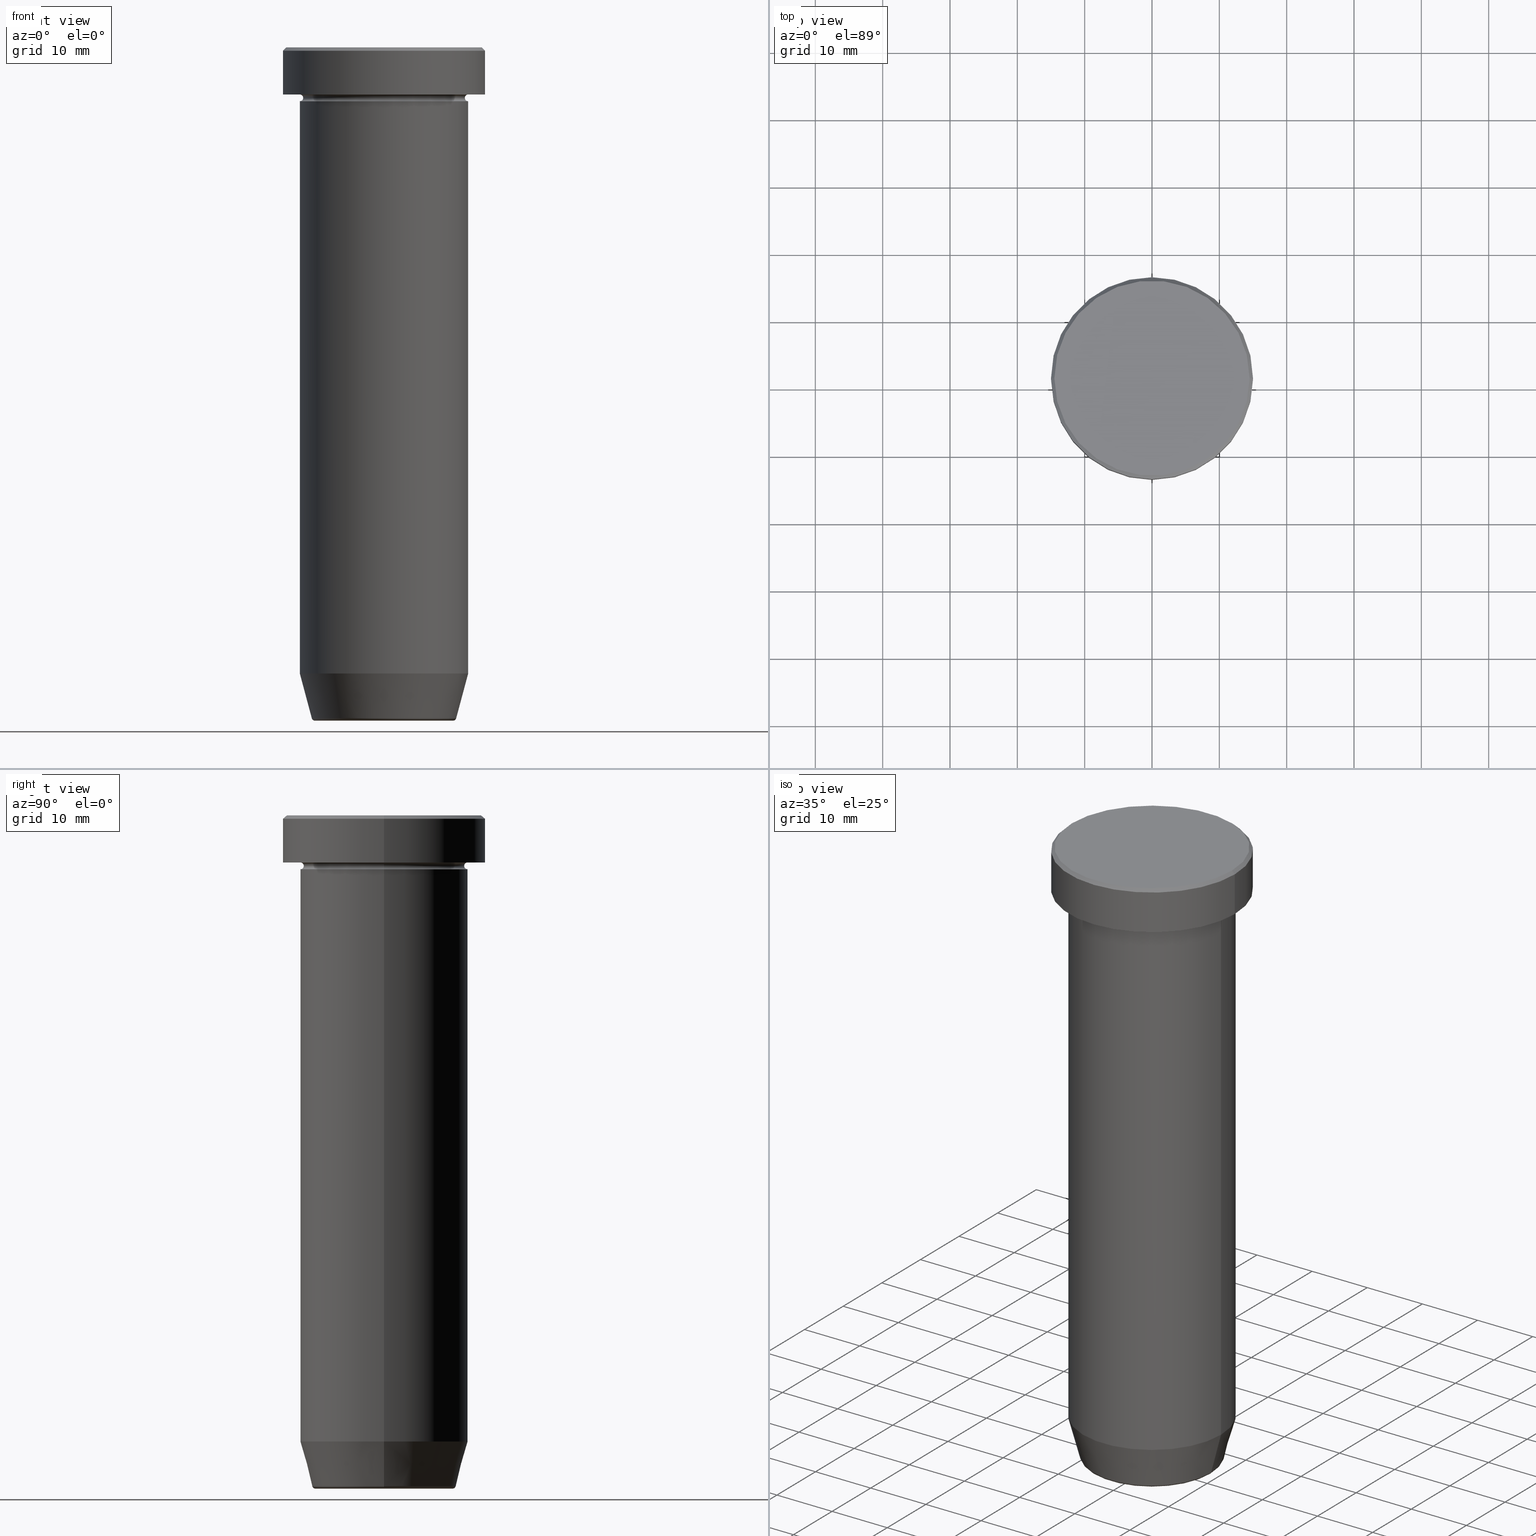
[diagram: canonical four-view strip — front | top / right | iso, engineering-drawing reading convention]
A machine part, canonical four-view strip (front | top / right | iso — engineering-drawing reading convention). The complete STEP part file that produces these views, byte-faithful:
ISO-10303-21;
HEADER;
FILE_DESCRIPTION (( 'STEP AP203' ),
    '1' );
FILE_NAME ('887b.STEP',
    '2024-01-02T20:45:46',
    ( '' ),
    ( '' ),
    'SwSTEP 2.0',
    'SolidWorks 2019',
    '' );
FILE_SCHEMA (( 'CONFIG_CONTROL_DESIGN' ));
ENDSEC;

DATA;
#1 = EDGE_CURVE ( 'NONE', #512, #400, #425, .T. ) ;
#2 = FACE_OUTER_BOUND ( 'NONE', #296, .T. ) ;
#3 = CARTESIAN_POINT ( 'NONE',  ( -12.50000000000000000, 1.530808498934191521E-15, -93.00000000000000000 ) ) ;
#4 = VERTEX_POINT ( 'NONE', #394 ) ;
#5 = VECTOR ( 'NONE', #48, 1000.000000000000000 ) ;
#6 = APPROVAL_PERSON_ORGANIZATION ( #469, #16, #190 ) ;
#7 = CARTESIAN_POINT ( 'NONE',  ( -12.50000000000000000, 1.530808498934191521E-15, 0.000000000000000000 ) ) ;
#8 = APPROVAL ( #523, 'NEUR�EN�' ) ;
#9 = DIRECTION ( 'NONE',  ( 0.7071067811865463515, 8.659560562354918067E-17, -0.7071067811865487940 ) ) ;
#10 = EDGE_LOOP ( 'NONE', ( #82, #565, #197, #529 ) ) ;
#11 = DIRECTION ( 'NONE',  ( -1.000000000000000000, 0.000000000000000000, 0.000000000000000000 ) ) ;
#12 = ORIENTED_EDGE ( 'NONE', *, *, #533, .T. ) ;
#13 = DIRECTION ( 'NONE',  ( 1.000000000000000000, 0.000000000000000000, 0.000000000000000000 ) ) ;
#14 = DESIGN_CONTEXT ( 'detailed design', #463, 'design' ) ;
#15 = VERTEX_POINT ( 'NONE', #519 ) ;
#16 = APPROVAL ( #46, 'NEUR�EN�' ) ;
#17 = DIRECTION ( 'NONE',  ( -0.000000000000000000, -0.000000000000000000, 1.000000000000000000 ) ) ;
#18 = TOROIDAL_SURFACE ( 'NONE', #464, 12.50000000000000000, 0.5000000000000000000 ) ;
#19 = TOROIDAL_SURFACE ( 'NONE', #365, 10.24069215899266005, 0.5000000000000000000 ) ;
#20 = VERTEX_POINT ( 'NONE', #471 ) ;
#21 = EDGE_CURVE ( 'NONE', #436, #208, #75, .T. ) ;
#22 = CARTESIAN_POINT ( 'NONE',  ( 0.000000000000000000, 15.00000000000000000, -6.999999999999999112 ) ) ;
#23 = ORIENTED_EDGE ( 'NONE', *, *, #587, .F. ) ;
#24 = CARTESIAN_POINT ( 'NONE',  ( -12.50000000000000000, 1.530808498934191521E-15, -7.500000000000000000 ) ) ;
#25 = ORGANIZATION ( 'NEUR�EN�', 'NEUR�EN�', '' ) ;
#26 = EDGE_LOOP ( 'NONE', ( #420, #104, #278, #293 ) ) ;
#27 = PERSON_AND_ORGANIZATION ( #329, #25 ) ;
#28 = DIRECTION ( 'NONE',  ( -0.000000000000000000, -0.000000000000000000, 1.000000000000000000 ) ) ;
#29 = DIRECTION ( 'NONE',  ( 0.000000000000000000, 0.000000000000000000, -1.000000000000000000 ) ) ;
#30 = FACE_OUTER_BOUND ( 'NONE', #160, .T. ) ;
#31 = AXIS2_PLACEMENT_3D ( 'NONE', #562, #560, #470 ) ;
#32 = EDGE_CURVE ( 'NONE', #153, #284, #87, .T. ) ;
#33 = CYLINDRICAL_SURFACE ( 'NONE', #343, 12.50000000000000000 ) ;
#34 = ORIENTED_EDGE ( 'NONE', *, *, #333, .F. ) ;
#35 = ORIENTED_EDGE ( 'NONE', *, *, #428, .F. ) ;
#36 = AXIS2_PLACEMENT_3D ( 'NONE', #366, #29, #207 ) ;
#37 = EDGE_CURVE ( 'NONE', #226, #208, #476, .T. ) ;
#38 = EDGE_LOOP ( 'NONE', ( #563, #417, #165, #534 ) ) ;
#39 = TOROIDAL_SURFACE ( 'NONE', #474, 12.50000000000000000, 0.5000000000000000000 ) ;
#40 = CIRCLE ( 'NONE', #200, 0.5000000000000004441 ) ;
#41 = ADVANCED_FACE ( 'NONE', ( #49 ), #399, .T. ) ;
#42 = CARTESIAN_POINT ( 'NONE',  ( 12.00000000000000000, 0.000000000000000000, -7.500000000000000000 ) ) ;
#43 = DIRECTION ( 'NONE',  ( 0.000000000000000000, 0.000000000000000000, -1.000000000000000000 ) ) ;
#44 = ORIENTED_EDGE ( 'NONE', *, *, #337, .T. ) ;
#45 = VECTOR ( 'NONE', #429, 1000.000000000000000 ) ;
#46 = APPROVAL_STATUS ( 'not_yet_approved' ) ;
#47 = EDGE_CURVE ( 'NONE', #274, #60, #146, .T. ) ;
#48 = DIRECTION ( 'NONE',  ( -0.000000000000000000, -0.000000000000000000, 1.000000000000000000 ) ) ;
#49 = FACE_OUTER_BOUND ( 'NONE', #26, .T. ) ;
#50 = ORIENTED_EDGE ( 'NONE', *, *, #522, .T. ) ;
#51 = PERSON_AND_ORGANIZATION_ROLE ( 'creator' ) ;
#52 = DIRECTION ( 'NONE',  ( -0.000000000000000000, -0.000000000000000000, 1.000000000000000000 ) ) ;
#53 = DIRECTION ( 'NONE',  ( 1.000000000000000000, 0.000000000000000000, 0.000000000000000000 ) ) ;
#54 = DIRECTION ( 'NONE',  ( -0.000000000000000000, -0.000000000000000000, 1.000000000000000000 ) ) ;
#55 = ORIENTED_EDGE ( 'NONE', *, *, #435, .F. ) ;
#56 = VERTEX_POINT ( 'NONE', #267 ) ;
#57 = CARTESIAN_POINT ( 'NONE',  ( -12.50000000000000000, 1.530808498934191521E-15, 0.000000000000000000 ) ) ;
#58 = AXIS2_PLACEMENT_3D ( 'NONE', #316, #591, #543 ) ;
#59 = EDGE_LOOP ( 'NONE', ( #93, #477 ) ) ;
#60 = VERTEX_POINT ( 'NONE', #412 ) ;
#61 = DIRECTION ( 'NONE',  ( 1.000000000000000000, 0.000000000000000000, 0.000000000000000000 ) ) ;
#62 = APPLICATION_CONTEXT ( 'configuration controlled 3d designs of mechanical parts and assemblies' ) ;
#63 = PLANE ( 'NONE',  #194 ) ;
#64 = DIRECTION ( 'NONE',  ( -0.000000000000000000, -0.000000000000000000, 1.000000000000000000 ) ) ;
#65 = ORIENTED_EDGE ( 'NONE', *, *, #533, .F. ) ;
#66 = DATE_AND_TIME ( #115, #323 ) ;
#67 = DIRECTION ( 'NONE',  ( -1.000000000000000000, 1.224646799147353454E-16, 0.000000000000000000 ) ) ;
#68 = EDGE_CURVE ( 'NONE', #4, #576, #158, .T. ) ;
#69 = AXIS2_PLACEMENT_3D ( 'NONE', #291, #196, #185 ) ;
#70 = AXIS2_PLACEMENT_3D ( 'NONE', #460, #554, #135 ) ;
#71 = DIRECTION ( 'NONE',  ( -0.000000000000000000, -0.000000000000000000, 1.000000000000000000 ) ) ;
#72 = DIRECTION ( 'NONE',  ( -0.000000000000000000, -0.000000000000000000, 1.000000000000000000 ) ) ;
#73 = ORIENTED_EDGE ( 'NONE', *, *, #578, .F. ) ;
#74 = DIRECTION ( 'NONE',  ( 1.000000000000000000, 0.000000000000000000, 0.000000000000000000 ) ) ;
#75 = CIRCLE ( 'NONE', #283, 15.00000000000000000 ) ;
#76 = CLOSED_SHELL ( 'NONE', ( #299, #325, #290, #407, #361, #77, #392, #137, #502, #566, #181, #382, #184 ) ) ;
#77 = ADVANCED_FACE ( 'NONE', ( #159 ), #360, .T. ) ;
#78 = CIRCLE ( 'NONE', #549, 12.50000000000000000 ) ;
#79 = AXIS2_PLACEMENT_3D ( 'NONE', #503, #162, #164 ) ;
#80 = CIRCLE ( 'NONE', #210, 0.5000000000000004441 ) ;
#81 = FACE_OUTER_BOUND ( 'NONE', #398, .T. ) ;
#82 = ORIENTED_EDGE ( 'NONE', *, *, #516, .F. ) ;
#83 = DIRECTION ( 'NONE',  ( 1.000000000000000000, 0.000000000000000000, 0.000000000000000000 ) ) ;
#84 = ADVANCED_FACE ( 'NONE', ( #492 ), #63, .F. ) ;
#85 = CARTESIAN_POINT ( 'NONE',  ( -15.00000000000000000, 1.836970198721029589E-15, -6.999999999999999112 ) ) ;
#86 = ORIENTED_EDGE ( 'NONE', *, *, #68, .T. ) ;
#87 = CIRCLE ( 'NONE', #193, 10.72365507213719482 ) ;
#88 = EDGE_LOOP ( 'NONE', ( #231, #485 ) ) ;
#89 = AXIS2_PLACEMENT_3D ( 'NONE', #386, #345, #11 ) ;
#90 =( GEOMETRIC_REPRESENTATION_CONTEXT ( 3 ) GLOBAL_UNCERTAINTY_ASSIGNED_CONTEXT ( ( #488 ) ) GLOBAL_UNIT_ASSIGNED_CONTEXT ( ( #279, #573, #567 ) ) REPRESENTATION_CONTEXT ( 'NONE', 'WORKASPACE' ) );
#91 = APPLICATION_PROTOCOL_DEFINITION ( 'international standard', 'config_control_design', 1994, #62 ) ;
#92 = DIRECTION ( 'NONE',  ( -0.000000000000000000, -0.000000000000000000, 1.000000000000000000 ) ) ;
#93 = ORIENTED_EDGE ( 'NONE', *, *, #349, .F. ) ;
#94 = DIRECTION ( 'NONE',  ( -0.000000000000000000, -0.000000000000000000, 1.000000000000000000 ) ) ;
#95 = DIRECTION ( 'NONE',  ( 0.000000000000000000, -0.000000000000000000, 1.000000000000000000 ) ) ;
#96 = EDGE_CURVE ( 'NONE', #465, #20, #530, .T. ) ;
#97 = MECHANICAL_CONTEXT ( 'NONE', #62, 'mechanical' ) ;
#98 = LINE ( 'NONE', #154, #45 ) ;
#99 = ORIENTED_EDGE ( 'NONE', *, *, #516, .T. ) ;
#100 = EDGE_LOOP ( 'NONE', ( #23, #572, #105, #202 ) ) ;
#101 = TOROIDAL_SURFACE ( 'NONE', #198, 10.24069215899266005, 0.5000000000000000000 ) ;
#102 = APPROVAL_ROLE ( '' ) ;
#103 = CARTESIAN_POINT ( 'NONE',  ( 0.000000000000000000, 0.000000000000000000, 0.000000000000000000 ) ) ;
#104 = ORIENTED_EDGE ( 'NONE', *, *, #216, .T. ) ;
#105 = ORIENTED_EDGE ( 'NONE', *, *, #107, .T. ) ;
#106 = CARTESIAN_POINT ( 'NONE',  ( 0.000000000000000000, 0.000000000000000000, -7.500000000000000000 ) ) ;
#107 = EDGE_CURVE ( 'NONE', #512, #576, #138, .T. ) ;
#108 = CARTESIAN_POINT ( 'NONE',  ( 0.000000000000000000, 0.000000000000000000, -6.999999999999999112 ) ) ;
#109 = ORIENTED_EDGE ( 'NONE', *, *, #21, .F. ) ;
#110 = CYLINDRICAL_SURFACE ( 'NONE', #301, 15.00000000000000000 ) ;
#111 = AXIS2_PLACEMENT_3D ( 'NONE', #141, #95, #144 ) ;
#112 = AXIS2_PLACEMENT_3D ( 'NONE', #309, #359, #542 ) ;
#113 = CARTESIAN_POINT ( 'NONE',  ( 0.000000000000000000, 0.000000000000000000, -6.999999999999999112 ) ) ;
#114 = CC_DESIGN_PERSON_AND_ORGANIZATION_ASSIGNMENT ( #423, #377, ( #426 ) ) ;
#115 = CALENDAR_DATE ( 2024, 2, 1 ) ;
#116 = LINE ( 'NONE', #535, #532 ) ;
#117 = DIRECTION ( 'NONE',  ( -0.000000000000000000, -0.000000000000000000, 1.000000000000000000 ) ) ;
#118 = COORDINATED_UNIVERSAL_TIME_OFFSET ( 1, 0, .AHEAD. ) ;
#119 = DIRECTION ( 'NONE',  ( -0.000000000000000000, -0.000000000000000000, 1.000000000000000000 ) ) ;
#120 = CC_DESIGN_PERSON_AND_ORGANIZATION_ASSIGNMENT ( #27, #302, ( #151 ) ) ;
#121 = AXIS2_PLACEMENT_3D ( 'NONE', #450, #72, #211 ) ;
#122 = CARTESIAN_POINT ( 'NONE',  ( 10.72365507213719305, 0.000000000000000000, -99.62940952255128479 ) ) ;
#123 = VECTOR ( 'NONE', #157, 1000.000000000000000 ) ;
#124 = CARTESIAN_POINT ( 'NONE',  ( 0.000000000000000000, 0.000000000000000000, 0.000000000000000000 ) ) ;
#125 = DIRECTION ( 'NONE',  ( -0.000000000000000000, -0.000000000000000000, 1.000000000000000000 ) ) ;
#126 = ORIENTED_EDGE ( 'NONE', *, *, #455, .T. ) ;
#127 = DIRECTION ( 'NONE',  ( 0.000000000000000000, -1.000000000000000000, 0.000000000000000000 ) ) ;
#128 = ORIENTED_EDGE ( 'NONE', *, *, #32, .F. ) ;
#129 = CARTESIAN_POINT ( 'NONE',  ( 10.62435565298213902, 0.000000000000000000, -100.0000000000000000 ) ) ;
#130 = CARTESIAN_POINT ( 'NONE',  ( 0.000000000000000000, 0.000000000000000000, 0.000000000000000000 ) ) ;
#131 = CARTESIAN_POINT ( 'NONE',  ( 12.50000000000000000, 0.000000000000000000, 0.000000000000000000 ) ) ;
#132 = EDGE_LOOP ( 'NONE', ( #281, #86 ) ) ;
#133 = DIRECTION ( 'NONE',  ( 0.2588190451025209060, 0.000000000000000000, 0.9659258262890682012 ) ) ;
#134 = AXIS2_PLACEMENT_3D ( 'NONE', #113, #504, #456 ) ;
#135 = DIRECTION ( 'NONE',  ( 1.000000000000000000, 0.000000000000000000, 0.000000000000000000 ) ) ;
#136 = CARTESIAN_POINT ( 'NONE',  ( -10.62435565298213902, 1.301108314342766318E-15, -100.0000000000000000 ) ) ;
#137 = ADVANCED_FACE ( 'NONE', ( #30 ), #538, .T. ) ;
#138 = CIRCLE ( 'NONE', #58, 0.5000000000000004441 ) ;
#139 = CIRCLE ( 'NONE', #491, 12.50000000000000000 ) ;
#140 = CARTESIAN_POINT ( 'NONE',  ( 12.50000000000000000, 1.530808498934191521E-15, -7.500000000000000000 ) ) ;
#141 = CARTESIAN_POINT ( 'NONE',  ( 0.000000000000000000, 0.000000000000000000, 0.000000000000000000 ) ) ;
#142 = ADVANCED_FACE ( 'NONE', ( #583 ), #101, .T. ) ;
#143 = DIRECTION ( 'NONE',  ( 1.000000000000000000, 0.000000000000000000, 0.000000000000000000 ) ) ;
#144 = DIRECTION ( 'NONE',  ( 1.000000000000000000, 0.000000000000000000, 0.000000000000000000 ) ) ;
#145 = ORIENTED_EDGE ( 'NONE', *, *, #47, .T. ) ;
#146 = CIRCLE ( 'NONE', #308, 15.00000000000000000 ) ;
#147 = DATE_TIME_ROLE ( 'creation_date' ) ;
#148 = EDGE_LOOP ( 'NONE', ( #336, #99, #375, #35 ) ) ;
#149 = CIRCLE ( 'NONE', #500, 0.5000000000000004441 ) ;
#150 = DIRECTION ( 'NONE',  ( -1.000000000000000000, -1.224646799147353454E-16, 0.000000000000000000 ) ) ;
#151 = PRODUCT_DEFINITION_FORMATION_WITH_SPECIFIED_SOURCE ( 'LIBOVOLN�', '', #426, .NOT_KNOWN. ) ;
#152 = DIRECTION ( 'NONE',  ( 0.000000000000000000, 0.000000000000000000, -1.000000000000000000 ) ) ;
#153 = VERTEX_POINT ( 'NONE', #122 ) ;
#154 = CARTESIAN_POINT ( 'NONE',  ( -15.00000000000000000, 1.836970198721029589E-15, 0.000000000000000000 ) ) ;
#155 = ORIENTED_EDGE ( 'NONE', *, *, #206, .F. ) ;
#156 = ORIENTED_EDGE ( 'NONE', *, *, #224, .T. ) ;
#157 = DIRECTION ( 'NONE',  ( -0.7071067811865463515, 0.000000000000000000, -0.7071067811865487940 ) ) ;
#158 = CIRCLE ( 'NONE', #134, 12.50000000000000000 ) ;
#159 = FACE_OUTER_BOUND ( 'NONE', #59, .T. ) ;
#160 = EDGE_LOOP ( 'NONE', ( #229, #145, #126, #44 ) ) ;
#161 = CC_DESIGN_APPROVAL ( #16, ( #233 ) ) ;
#162 = DIRECTION ( 'NONE',  ( -0.000000000000000000, -0.000000000000000000, 1.000000000000000000 ) ) ;
#163 = EDGE_CURVE ( 'NONE', #576, #4, #389, .T. ) ;
#164 = DIRECTION ( 'NONE',  ( -1.000000000000000000, 0.000000000000000000, 0.000000000000000000 ) ) ;
#165 = ORIENTED_EDGE ( 'NONE', *, *, #522, .F. ) ;
#166 = PERSON_AND_ORGANIZATION_ROLE ( 'classification_officer' ) ;
#167 = DIRECTION ( 'NONE',  ( -0.000000000000000000, -0.000000000000000000, 1.000000000000000000 ) ) ;
#168 = DIRECTION ( 'NONE',  ( -1.000000000000000000, 0.000000000000000000, -0.000000000000000000 ) ) ;
#169 = CIRCLE ( 'NONE', #514, 12.50000000000000000 ) ;
#170 = DIRECTION ( 'NONE',  ( -0.000000000000000000, -0.000000000000000000, 1.000000000000000000 ) ) ;
#171 = CIRCLE ( 'NONE', #559, 12.50000000000000000 ) ;
#172 = ORIENTED_EDGE ( 'NONE', *, *, #319, .T. ) ;
#173 = CARTESIAN_POINT ( 'NONE',  ( 14.49999999999999645, 1.806354028742345802E-15, 0.000000000000000000 ) ) ;
#174 = CC_DESIGN_PERSON_AND_ORGANIZATION_ASSIGNMENT ( #358, #166, ( #457 ) ) ;
#175 = CARTESIAN_POINT ( 'NONE',  ( -12.50000000000000000, 0.000000000000000000, -6.999999999999999112 ) ) ;
#176 = FACE_OUTER_BOUND ( 'NONE', #204, .T. ) ;
#177 = PLANE ( 'NONE',  #313 ) ;
#178 = AXIS2_PLACEMENT_3D ( 'NONE', #310, #214, #406 ) ;
#179 = ORIENTED_EDGE ( 'NONE', *, *, #449, .T. ) ;
#180 = AXIS2_PLACEMENT_3D ( 'NONE', #22, #531, #168 ) ;
#181 = ADVANCED_FACE ( 'NONE', ( #495 ), #508, .F. ) ;
#182 = DIRECTION ( 'NONE',  ( -0.000000000000000000, -0.000000000000000000, 1.000000000000000000 ) ) ;
#183 = ORIENTED_EDGE ( 'NONE', *, *, #337, .F. ) ;
#184 = ADVANCED_FACE ( 'NONE', ( #259 ), #260, .T. ) ;
#185 = DIRECTION ( 'NONE',  ( 1.000000000000000000, 0.000000000000000000, 0.000000000000000000 ) ) ;
#186 = CIRCLE ( 'NONE', #341, 15.00000000000000000 ) ;
#187 = LOCAL_TIME ( 21, 45, 46.00000000000000000, #118 ) ;
#188 = LINE ( 'NONE', #7, #5 ) ;
#189 = ORIENTED_EDGE ( 'NONE', *, *, #455, .F. ) ;
#190 = APPROVAL_ROLE ( '' ) ;
#191 = FACE_OUTER_BOUND ( 'NONE', #384, .T. ) ;
#192 = ORIENTED_EDGE ( 'NONE', *, *, #1, .F. ) ;
#193 = AXIS2_PLACEMENT_3D ( 'NONE', #287, #489, #432 ) ;
#194 = AXIS2_PLACEMENT_3D ( 'NONE', #262, #222, #219 ) ;
#195 = COORDINATED_UNIVERSAL_TIME_OFFSET ( 1, 0, .AHEAD. ) ;
#196 = DIRECTION ( 'NONE',  ( -0.000000000000000000, -0.000000000000000000, 1.000000000000000000 ) ) ;
#197 = ORIENTED_EDGE ( 'NONE', *, *, #428, .T. ) ;
#198 = AXIS2_PLACEMENT_3D ( 'NONE', #357, #536, #307 ) ;
#199 = DIRECTION ( 'NONE',  ( 1.000000000000000000, 0.000000000000000000, 0.000000000000000000 ) ) ;
#200 = AXIS2_PLACEMENT_3D ( 'NONE', #506, #127, #369 ) ;
#201 = DIRECTION ( 'NONE',  ( 1.224646799147353207E-16, 1.000000000000000000, 0.000000000000000000 ) ) ;
#202 = ORIENTED_EDGE ( 'NONE', *, *, #68, .F. ) ;
#203 = DIRECTION ( 'NONE',  ( -0.000000000000000000, -0.000000000000000000, 1.000000000000000000 ) ) ;
#204 = EDGE_LOOP ( 'NONE', ( #34, #311, #598, #55 ) ) ;
#205 = CARTESIAN_POINT ( 'NONE',  ( 0.000000000000000000, 0.000000000000000000, -7.500000000000000000 ) ) ;
#206 = EDGE_CURVE ( 'NONE', #284, #153, #230, .T. ) ;
#207 = DIRECTION ( 'NONE',  ( -1.000000000000000000, 0.000000000000000000, -0.000000000000000000 ) ) ;
#208 = VERTEX_POINT ( 'NONE', #410 ) ;
#209 = TOROIDAL_SURFACE ( 'NONE', #31, 12.50000000000000000, 0.5000000000000000000 ) ;
#210 = AXIS2_PLACEMENT_3D ( 'NONE', #24, #498, #67 ) ;
#211 = DIRECTION ( 'NONE',  ( 1.000000000000000000, 0.000000000000000000, 0.000000000000000000 ) ) ;
#212 = CALENDAR_DATE ( 2024, 2, 1 ) ;
#213 = DIRECTION ( 'NONE',  ( -0.000000000000000000, -0.000000000000000000, 1.000000000000000000 ) ) ;
#214 = DIRECTION ( 'NONE',  ( 0.000000000000000000, 0.000000000000000000, -1.000000000000000000 ) ) ;
#215 = VERTEX_POINT ( 'NONE', #265 ) ;
#216 = EDGE_CURVE ( 'NONE', #284, #320, #453, .T. ) ;
#217 = DATE_AND_TIME ( #579, #187 ) ;
#218 = DIRECTION ( 'NONE',  ( 1.000000000000000000, 0.000000000000000000, 0.000000000000000000 ) ) ;
#219 = DIRECTION ( 'NONE',  ( 1.000000000000000000, 0.000000000000000000, 0.000000000000000000 ) ) ;
#220 = PRODUCT_RELATED_PRODUCT_CATEGORY ( 'detail', '', ( #426 ) ) ;
#221 = CIRCLE ( 'NONE', #558, 12.50000000000000000 ) ;
#222 = DIRECTION ( 'NONE',  ( 0.000000000000000000, -0.000000000000000000, 1.000000000000000000 ) ) ;
#223 = DIRECTION ( 'NONE',  ( -0.000000000000000000, -0.000000000000000000, 1.000000000000000000 ) ) ;
#224 = EDGE_CURVE ( 'NONE', #215, #454, #569, .T. ) ;
#225 = DIRECTION ( 'NONE',  ( 1.000000000000000000, 0.000000000000000000, 0.000000000000000000 ) ) ;
#226 = VERTEX_POINT ( 'NONE', #173 ) ;
#227 = EDGE_CURVE ( 'NONE', #340, #15, #251, .T. ) ;
#228 = FACE_OUTER_BOUND ( 'NONE', #395, .T. ) ;
#229 = ORIENTED_EDGE ( 'NONE', *, *, #319, .F. ) ;
#230 = CIRCLE ( 'NONE', #592, 10.72365507213719482 ) ;
#231 = ORIENTED_EDGE ( 'NONE', *, *, #227, .T. ) ;
#232 = CIRCLE ( 'NONE', #315, 12.00000000000000000 ) ;
#233 = PRODUCT_DEFINITION ( 'NEZN�M�', '', #151, #14 ) ;
#234 = ADVANCED_FACE ( 'NONE', ( #81 ), #177, .F. ) ;
#235 = DIRECTION ( 'NONE',  ( 0.000000000000000000, 0.000000000000000000, -1.000000000000000000 ) ) ;
#236 = AXIS2_PLACEMENT_3D ( 'NONE', #447, #125, #74 ) ;
#237 = ADVANCED_BREP_SHAPE_REPRESENTATION ( '887b', ( #580, #376, #271 ), #90 ) ;
#238 = FACE_OUTER_BOUND ( 'NONE', #148, .T. ) ;
#239 = DIRECTION ( 'NONE',  ( 1.000000000000000000, 0.000000000000000000, 0.000000000000000000 ) ) ;
#240 = VECTOR ( 'NONE', #422, 1000.000000000000000 ) ;
#241 = APPROVAL_PERSON_ORGANIZATION ( #338, #8, #102 ) ;
#242 = PERSON_AND_ORGANIZATION ( #329, #25 ) ;
#243 = CARTESIAN_POINT ( 'NONE',  ( 10.24069215899266005, 0.000000000000000000, -100.0000000000000000 ) ) ;
#244 = DIRECTION ( 'NONE',  ( -0.000000000000000000, -0.000000000000000000, 1.000000000000000000 ) ) ;
#245 = ORIENTED_EDGE ( 'NONE', *, *, #374, .F. ) ;
#246 = CARTESIAN_POINT ( 'NONE',  ( -12.50000000000000000, 1.530808498934191521E-15, -25.00000000000000000 ) ) ;
#247 = ORIENTED_EDGE ( 'NONE', *, *, #322, .T. ) ;
#248 = DIRECTION ( 'NONE',  ( 0.000000000000000000, 0.000000000000000000, 1.000000000000000000 ) ) ;
#249 = CARTESIAN_POINT ( 'NONE',  ( 14.49999999999999645, 1.775737858763661620E-15, 0.000000000000000000 ) ) ;
#250 = ORIENTED_EDGE ( 'NONE', *, *, #163, .F. ) ;
#251 = CIRCLE ( 'NONE', #413, 10.24069215899266005 ) ;
#252 = CC_DESIGN_APPROVAL ( #590, ( #457 ) ) ;
#253 = DIRECTION ( 'NONE',  ( 1.000000000000000000, 0.000000000000000000, 0.000000000000000000 ) ) ;
#254 = ORIENTED_EDGE ( 'NONE', *, *, #47, .F. ) ;
#255 = ORIENTED_EDGE ( 'NONE', *, *, #374, .T. ) ;
#256 = EDGE_CURVE ( 'NONE', #526, #56, #462, .T. ) ;
#257 = CARTESIAN_POINT ( 'NONE',  ( 12.50000000000000000, 0.000000000000000000, -93.00000000000000000 ) ) ;
#258 = CARTESIAN_POINT ( 'NONE',  ( -12.50000000000000000, 1.530808498934191521E-15, -25.00000000000000000 ) ) ;
#259 = FACE_OUTER_BOUND ( 'NONE', #480, .T. ) ;
#260 = CONICAL_SURFACE ( 'NONE', #178, 14.49999999999999645, 0.7853981633974466137 ) ;
#261 = DIRECTION ( 'NONE',  ( -0.000000000000000000, -0.000000000000000000, 1.000000000000000000 ) ) ;
#262 = CARTESIAN_POINT ( 'NONE',  ( 0.000000000000000000, 6.123233995736766085E-15, -100.0000000000000000 ) ) ;
#263 = APPROVAL_ROLE ( '' ) ;
#264 = CARTESIAN_POINT ( 'NONE',  ( 15.00000000000000000, 0.000000000000000000, 0.000000000000000000 ) ) ;
#265 = CARTESIAN_POINT ( 'NONE',  ( -12.50000000000000000, 1.530808498934191521E-15, -8.000000000000000000 ) ) ;
#266 = ORIENTED_EDGE ( 'NONE', *, *, #479, .T. ) ;
#267 = CARTESIAN_POINT ( 'NONE',  ( 12.50000000000000000, 0.000000000000000000, -25.00000000000000000 ) ) ;
#268 = CARTESIAN_POINT ( 'NONE',  ( 0.000000000000000000, 0.000000000000000000, -8.000000000000000000 ) ) ;
#269 = CONICAL_SURFACE ( 'NONE', #354, 10.62435565298213902, 0.2617993877991495744 ) ;
#270 = DIRECTION ( 'NONE',  ( -1.000000000000000000, 0.000000000000000000, -0.000000000000000000 ) ) ;
#271 = AXIS2_PLACEMENT_3D ( 'NONE', #330, #248, #143 ) ;
#272 = EDGE_CURVE ( 'NONE', #153, #526, #466, .T. ) ;
#273 = CARTESIAN_POINT ( 'NONE',  ( -10.72365507213719305, 1.422038742429750516E-15, -99.62940952255128479 ) ) ;
#274 = VERTEX_POINT ( 'NONE', #85 ) ;
#275 = CYLINDRICAL_SURFACE ( 'NONE', #509, 12.50000000000000000 ) ;
#276 = AXIS2_PLACEMENT_3D ( 'NONE', #416, #419, #548 ) ;
#277 = EDGE_CURVE ( 'NONE', #15, #340, #544, .T. ) ;
#278 = ORIENTED_EDGE ( 'NONE', *, *, #328, .F. ) ;
#279 =( LENGTH_UNIT ( ) NAMED_UNIT ( * ) SI_UNIT ( .MILLI., .METRE. ) );
#280 = CARTESIAN_POINT ( 'NONE',  ( 0.000000000000000000, 0.000000000000000000, -100.0000000000000000 ) ) ;
#281 = ORIENTED_EDGE ( 'NONE', *, *, #163, .T. ) ;
#282 = CARTESIAN_POINT ( 'NONE',  ( 0.000000000000000000, 0.000000000000000000, -0.5000000000000038858 ) ) ;
#283 = AXIS2_PLACEMENT_3D ( 'NONE', #571, #43, #239 ) ;
#284 = VERTEX_POINT ( 'NONE', #273 ) ;
#285 = CALENDAR_DATE ( 2024, 2, 1 ) ;
#286 = CYLINDRICAL_SURFACE ( 'NONE', #69, 12.50000000000000000 ) ;
#287 = CARTESIAN_POINT ( 'NONE',  ( 0.000000000000000000, 0.000000000000000000, -99.62940952255128479 ) ) ;
#288 = ORIENTED_EDGE ( 'NONE', *, *, #206, .T. ) ;
#289 = COORDINATED_UNIVERSAL_TIME_OFFSET ( 1, 0, .AHEAD. ) ;
#290 = ADVANCED_FACE ( 'NONE', ( #458 ), #18, .F. ) ;
#291 = CARTESIAN_POINT ( 'NONE',  ( 0.000000000000000000, 0.000000000000000000, 0.000000000000000000 ) ) ;
#292 = CARTESIAN_POINT ( 'NONE',  ( 0.000000000000000000, 0.000000000000000000, -7.500000000000000000 ) ) ;
#293 = ORIENTED_EDGE ( 'NONE', *, *, #272, .F. ) ;
#294 = DIRECTION ( 'NONE',  ( -1.000000000000000000, 1.224646799147353454E-16, 0.000000000000000000 ) ) ;
#295 = DIRECTION ( 'NONE',  ( -0.000000000000000000, -0.000000000000000000, 1.000000000000000000 ) ) ;
#296 = EDGE_LOOP ( 'NONE', ( #373, #247, #128, #65 ) ) ;
#297 = PERSON_AND_ORGANIZATION ( #329, #25 ) ;
#298 = CARTESIAN_POINT ( 'NONE',  ( 0.000000000000000000, 0.000000000000000000, -25.00000000000000000 ) ) ;
#299 = ADVANCED_FACE ( 'NONE', ( #228 ), #582, .T. ) ;
#300 = ORIENTED_EDGE ( 'NONE', *, *, #435, .T. ) ;
#301 = AXIS2_PLACEMENT_3D ( 'NONE', #103, #17, #575 ) ;
#302 = PERSON_AND_ORGANIZATION_ROLE ( 'design_supplier' ) ;
#303 = DIRECTION ( 'NONE',  ( 1.000000000000000000, 0.000000000000000000, 0.000000000000000000 ) ) ;
#304 = PERSON_AND_ORGANIZATION_ROLE ( 'creator' ) ;
#305 = CC_DESIGN_PERSON_AND_ORGANIZATION_ASSIGNMENT ( #355, #304, ( #151 ) ) ;
#306 = LINE ( 'NONE', #264, #570 ) ;
#307 = DIRECTION ( 'NONE',  ( 1.000000000000000000, 0.000000000000000000, 0.000000000000000000 ) ) ;
#308 = AXIS2_PLACEMENT_3D ( 'NONE', #108, #295, #484 ) ;
#309 = CARTESIAN_POINT ( 'NONE',  ( 0.000000000000000000, 0.000000000000000000, 0.000000000000000000 ) ) ;
#310 = CARTESIAN_POINT ( 'NONE',  ( 0.000000000000000000, 0.000000000000000000, 0.000000000000000000 ) ) ;
#311 = ORIENTED_EDGE ( 'NONE', *, *, #493, .T. ) ;
#312 = SHAPE_DEFINITION_REPRESENTATION ( #472, #237 ) ;
#313 = AXIS2_PLACEMENT_3D ( 'NONE', #368, #372, #270 ) ;
#314 = FACE_OUTER_BOUND ( 'NONE', #437, .T. ) ;
#315 = AXIS2_PLACEMENT_3D ( 'NONE', #205, #64, #351 ) ;
#316 = CARTESIAN_POINT ( 'NONE',  ( -12.50000000000000000, 0.000000000000000000, -7.500000000000000000 ) ) ;
#317 = EDGE_LOOP ( 'NONE', ( #192, #350, #156, #245 ) ) ;
#318 = LINE ( 'NONE', #57, #415 ) ;
#319 = EDGE_CURVE ( 'NONE', #274, #436, #98, .T. ) ;
#320 = VERTEX_POINT ( 'NONE', #3 ) ;
#321 = AXIS2_PLACEMENT_3D ( 'NONE', #292, #383, #53 ) ;
#322 = EDGE_CURVE ( 'NONE', #15, #284, #149, .T. ) ;
#323 = LOCAL_TIME ( 21, 45, 46.00000000000000000, #289 ) ;
#324 = EDGE_LOOP ( 'NONE', ( #459, #547, #250, #505 ) ) ;
#325 = ADVANCED_FACE ( 'NONE', ( #441 ), #39, .F. ) ;
#326 = DIRECTION ( 'NONE',  ( 1.000000000000000000, 0.000000000000000000, 0.000000000000000000 ) ) ;
#327 = EDGE_LOOP ( 'NONE', ( #440, #553, #255, #353 ) ) ;
#328 = EDGE_CURVE ( 'NONE', #526, #320, #169, .T. ) ;
#329 = PERSON ( 'NEUR�EN�', 'NEUR�EN�', 'NEUR�EN�', ('NEUR�EN�'), ('NEUR�EN�'), ('NEUR�EN�') ) ;
#330 = CARTESIAN_POINT ( 'NONE',  ( 0.000000000000000000, 0.000000000000000000, 0.000000000000000000 ) ) ;
#331 = CIRCLE ( 'NONE', #475, 12.50000000000000000 ) ;
#332 = DIRECTION ( 'NONE',  ( 0.000000000000000000, -1.000000000000000000, 0.000000000000000000 ) ) ;
#333 = EDGE_CURVE ( 'NONE', #320, #347, #188, .T. ) ;
#334 = CARTESIAN_POINT ( 'NONE',  ( 0.000000000000000000, 0.000000000000000000, -99.50000000000000000 ) ) ;
#335 = CYLINDRICAL_SURFACE ( 'NONE', #380, 12.50000000000000000 ) ;
#336 = ORIENTED_EDGE ( 'NONE', *, *, #349, .T. ) ;
#337 = EDGE_CURVE ( 'NONE', #208, #436, #186, .T. ) ;
#338 = PERSON_AND_ORGANIZATION ( #329, #25 ) ;
#339 = DIRECTION ( 'NONE',  ( -0.000000000000000000, -0.000000000000000000, 1.000000000000000000 ) ) ;
#340 = VERTEX_POINT ( 'NONE', #243 ) ;
#341 = AXIS2_PLACEMENT_3D ( 'NONE', #282, #393, #518 ) ;
#342 = EDGE_LOOP ( 'NONE', ( #445, #481, #12, #155 ) ) ;
#343 = AXIS2_PLACEMENT_3D ( 'NONE', #130, #223, #326 ) ;
#344 = CC_DESIGN_DATE_AND_TIME_ASSIGNMENT ( #540, #497, ( #457 ) ) ;
#345 = DIRECTION ( 'NONE',  ( 0.000000000000000000, 0.000000000000000000, -1.000000000000000000 ) ) ;
#346 = CARTESIAN_POINT ( 'NONE',  ( 0.000000000000000000, 0.000000000000000000, -100.0000000000000000 ) ) ;
#347 = VERTEX_POINT ( 'NONE', #246 ) ;
#348 = CARTESIAN_POINT ( 'NONE',  ( 0.000000000000000000, 0.000000000000000000, -7.500000000000000000 ) ) ;
#349 = EDGE_CURVE ( 'NONE', #20, #465, #221, .T. ) ;
#350 = ORIENTED_EDGE ( 'NONE', *, *, #468, .T. ) ;
#351 = DIRECTION ( 'NONE',  ( 1.000000000000000000, 0.000000000000000000, 0.000000000000000000 ) ) ;
#352 = CARTESIAN_POINT ( 'NONE',  ( 0.000000000000000000, 0.000000000000000000, 0.000000000000000000 ) ) ;
#353 = ORIENTED_EDGE ( 'NONE', *, *, #541, .T. ) ;
#354 = AXIS2_PLACEMENT_3D ( 'NONE', #584, #537, #253 ) ;
#355 = PERSON_AND_ORGANIZATION ( #329, #25 ) ;
#356 = APPROVAL_PERSON_ORGANIZATION ( #297, #590, #263 ) ;
#357 = CARTESIAN_POINT ( 'NONE',  ( 0.000000000000000000, 0.000000000000000000, -99.50000000000000000 ) ) ;
#358 = PERSON_AND_ORGANIZATION ( #329, #25 ) ;
#359 = DIRECTION ( 'NONE',  ( -0.000000000000000000, -0.000000000000000000, 1.000000000000000000 ) ) ;
#360 = PLANE ( 'NONE',  #36 ) ;
#361 = ADVANCED_FACE ( 'NONE', ( #191 ), #110, .T. ) ;
#362 = COORDINATED_UNIVERSAL_TIME_OFFSET ( 1, 0, .AHEAD. ) ;
#363 = DIRECTION ( 'NONE',  ( 1.000000000000000000, 0.000000000000000000, 0.000000000000000000 ) ) ;
#364 = CARTESIAN_POINT ( 'NONE',  ( -12.00000000000000000, 1.500192328955507734E-15, -7.500000000000000000 ) ) ;
#365 = AXIS2_PLACEMENT_3D ( 'NONE', #334, #94, #199 ) ;
#366 = CARTESIAN_POINT ( 'NONE',  ( 0.000000000000000000, 12.50000000000000000, -25.00000000000000000 ) ) ;
#367 = ADVANCED_FACE ( 'NONE', ( #524 ), #286, .T. ) ;
#368 = CARTESIAN_POINT ( 'NONE',  ( 0.000000000000000000, -3.469446951953614189E-15, -25.00000000000000000 ) ) ;
#369 = DIRECTION ( 'NONE',  ( 0.000000000000000000, 0.000000000000000000, -1.000000000000000000 ) ) ;
#370 = AXIS2_PLACEMENT_3D ( 'NONE', #352, #170, #402 ) ;
#371 = LOCAL_TIME ( 21, 45, 46.00000000000000000, #195 ) ;
#372 = DIRECTION ( 'NONE',  ( 0.000000000000000000, 0.000000000000000000, -1.000000000000000000 ) ) ;
#373 = ORIENTED_EDGE ( 'NONE', *, *, #277, .F. ) ;
#374 = EDGE_CURVE ( 'NONE', #400, #454, #404, .T. ) ;
#375 = ORIENTED_EDGE ( 'NONE', *, *, #541, .F. ) ;
#376 = MANIFOLD_SOLID_BREP ( 'Zaoblit4', #483 ) ;
#377 = PERSON_AND_ORGANIZATION_ROLE ( 'design_owner' ) ;
#378 = DIRECTION ( 'NONE',  ( -1.000000000000000000, 0.000000000000000000, 0.000000000000000000 ) ) ;
#379 = CC_DESIGN_DATE_AND_TIME_ASSIGNMENT ( #564, #147, ( #233 ) ) ;
#380 = AXIS2_PLACEMENT_3D ( 'NONE', #124, #167, #61 ) ;
#381 = AXIS2_PLACEMENT_3D ( 'NONE', #140, #517, #150 ) ;
#382 = ADVANCED_FACE ( 'NONE', ( #438 ), #209, .F. ) ;
#383 = DIRECTION ( 'NONE',  ( -0.000000000000000000, -0.000000000000000000, 1.000000000000000000 ) ) ;
#384 = EDGE_LOOP ( 'NONE', ( #467, #172, #403, #189 ) ) ;
#385 = CALENDAR_DATE ( 2024, 2, 1 ) ;
#386 = CARTESIAN_POINT ( 'NONE',  ( 0.000000000000000000, 0.000000000000000000, 0.000000000000000000 ) ) ;
#387 = ORIENTED_EDGE ( 'NONE', *, *, #37, .F. ) ;
#388 = CARTESIAN_POINT ( 'NONE',  ( -10.24069215899266005, 1.254123087356376030E-15, -99.50000000000000000 ) ) ;
#389 = CIRCLE ( 'NONE', #79, 12.50000000000000000 ) ;
#390 = ORIENTED_EDGE ( 'NONE', *, *, #216, .F. ) ;
#391 = CIRCLE ( 'NONE', #431, 14.49999999999999645 ) ;
#392 = ADVANCED_FACE ( 'NONE', ( #568 ), #424, .T. ) ;
#393 = DIRECTION ( 'NONE',  ( 0.000000000000000000, 0.000000000000000000, -1.000000000000000000 ) ) ;
#394 = CARTESIAN_POINT ( 'NONE',  ( 12.50000000000000000, 1.530808498934191521E-15, -6.999999999999999112 ) ) ;
#395 = EDGE_LOOP ( 'NONE', ( #510, #408, #109, #586 ) ) ;
#396 = APPROVAL_DATE_TIME ( #66, #8 ) ;
#397 = CARTESIAN_POINT ( 'NONE',  ( 0.000000000000000000, 0.000000000000000000, -25.00000000000000000 ) ) ;
#398 = EDGE_LOOP ( 'NONE', ( #50, #300 ) ) ;
#399 = CONICAL_SURFACE ( 'NONE', #496, 10.62435565298213902, 0.2617993877991495744 ) ;
#400 = VERTEX_POINT ( 'NONE', #42 ) ;
#401 = CARTESIAN_POINT ( 'NONE',  ( 0.000000000000000000, 0.000000000000000000, 0.000000000000000000 ) ) ;
#402 = DIRECTION ( 'NONE',  ( 1.000000000000000000, 0.000000000000000000, 0.000000000000000000 ) ) ;
#403 = ORIENTED_EDGE ( 'NONE', *, *, #21, .T. ) ;
#404 = CIRCLE ( 'NONE', #421, 0.5000000000000004441 ) ;
#405 = LOCAL_TIME ( 21, 45, 46.00000000000000000, #362 ) ;
#406 = DIRECTION ( 'NONE',  ( -1.000000000000000000, 0.000000000000000000, 0.000000000000000000 ) ) ;
#407 = ADVANCED_FACE ( 'NONE', ( #238 ), #335, .T. ) ;
#408 = ORIENTED_EDGE ( 'NONE', *, *, #37, .T. ) ;
#409 = CARTESIAN_POINT ( 'NONE',  ( 0.000000000000000000, 0.000000000000000000, -25.00000000000000000 ) ) ;
#410 = CARTESIAN_POINT ( 'NONE',  ( 15.00000000000000000, 0.000000000000000000, -0.5000000000000038858 ) ) ;
#411 = FACE_BOUND ( 'NONE', #132, .T. ) ;
#412 = CARTESIAN_POINT ( 'NONE',  ( 15.00000000000000000, 0.000000000000000000, -6.999999999999999112 ) ) ;
#413 = AXIS2_PLACEMENT_3D ( 'NONE', #280, #552, #507 ) ;
#414 = ADVANCED_FACE ( 'NONE', ( #314 ), #269, .T. ) ;
#415 = VECTOR ( 'NONE', #203, 1000.000000000000000 ) ;
#416 = CARTESIAN_POINT ( 'NONE',  ( 0.000000000000000000, 0.000000000000000000, -100.0000000000000000 ) ) ;
#417 = ORIENTED_EDGE ( 'NONE', *, *, #333, .T. ) ;
#418 = FACE_OUTER_BOUND ( 'NONE', #10, .T. ) ;
#419 = DIRECTION ( 'NONE',  ( 0.000000000000000000, 0.000000000000000000, -1.000000000000000000 ) ) ;
#420 = ORIENTED_EDGE ( 'NONE', *, *, #32, .T. ) ;
#421 = AXIS2_PLACEMENT_3D ( 'NONE', #478, #332, #235 ) ;
#422 = DIRECTION ( 'NONE',  ( -0.2588190451025209060, 3.169619151431766790E-17, 0.9659258262890682012 ) ) ;
#423 = PERSON_AND_ORGANIZATION ( #329, #25 ) ;
#424 = PLANE ( 'NONE',  #111 ) ;
#425 = CIRCLE ( 'NONE', #321, 12.00000000000000000 ) ;
#426 = PRODUCT ( '887b', '887b', '', ( #97 ) ) ;
#427 = COORDINATED_UNIVERSAL_TIME_OFFSET ( 1, 0, .AHEAD. ) ;
#428 = EDGE_CURVE ( 'NONE', #20, #454, #116, .T. ) ;
#429 = DIRECTION ( 'NONE',  ( -0.000000000000000000, -0.000000000000000000, 1.000000000000000000 ) ) ;
#430 = VECTOR ( 'NONE', #133, 1000.000000000000000 ) ;
#431 = AXIS2_PLACEMENT_3D ( 'NONE', #401, #261, #451 ) ;
#432 = DIRECTION ( 'NONE',  ( -1.000000000000000000, 0.000000000000000000, 0.000000000000000000 ) ) ;
#433 = CIRCLE ( 'NONE', #112, 14.49999999999999645 ) ;
#434 = ORIENTED_EDGE ( 'NONE', *, *, #493, .F. ) ;
#435 = EDGE_CURVE ( 'NONE', #347, #56, #78, .T. ) ;
#436 = VERTEX_POINT ( 'NONE', #448 ) ;
#437 = EDGE_LOOP ( 'NONE', ( #390, #288, #596, #434 ) ) ;
#438 = FACE_OUTER_BOUND ( 'NONE', #100, .T. ) ;
#439 = EDGE_CURVE ( 'NONE', #400, #512, #232, .T. ) ;
#440 = ORIENTED_EDGE ( 'NONE', *, *, #468, .F. ) ;
#441 = FACE_OUTER_BOUND ( 'NONE', #324, .T. ) ;
#442 = ORIENTED_EDGE ( 'NONE', *, *, #479, .F. ) ;
#443 = LOCAL_TIME ( 21, 45, 46.00000000000000000, #427 ) ;
#444 = CARTESIAN_POINT ( 'NONE',  ( 12.50000000000000000, 0.000000000000000000, -8.000000000000000000 ) ) ;
#445 = ORIENTED_EDGE ( 'NONE', *, *, #322, .F. ) ;
#446 = APPROVAL_DATE_TIME ( #217, #590 ) ;
#447 = CARTESIAN_POINT ( 'NONE',  ( 0.000000000000000000, 0.000000000000000000, -25.00000000000000000 ) ) ;
#448 = CARTESIAN_POINT ( 'NONE',  ( -15.00000000000000000, 1.836970198721029589E-15, -0.5000000000000038858 ) ) ;
#449 = EDGE_CURVE ( 'NONE', #226, #490, #433, .T. ) ;
#450 = CARTESIAN_POINT ( 'NONE',  ( 0.000000000000000000, 0.000000000000000000, -7.500000000000000000 ) ) ;
#451 = DIRECTION ( 'NONE',  ( 1.000000000000000000, 0.000000000000000000, 0.000000000000000000 ) ) ;
#452 = CARTESIAN_POINT ( 'NONE',  ( -14.49999999999999645, 0.000000000000000000, 0.000000000000000000 ) ) ;
#453 = LINE ( 'NONE', #136, #240 ) ;
#454 = VERTEX_POINT ( 'NONE', #444 ) ;
#455 = EDGE_CURVE ( 'NONE', #60, #208, #306, .T. ) ;
#456 = DIRECTION ( 'NONE',  ( -1.000000000000000000, 0.000000000000000000, 0.000000000000000000 ) ) ;
#457 = SECURITY_CLASSIFICATION ( '', '', #588 ) ;
#458 = FACE_OUTER_BOUND ( 'NONE', #317, .T. ) ;
#459 = ORIENTED_EDGE ( 'NONE', *, *, #1, .T. ) ;
#460 = CARTESIAN_POINT ( 'NONE',  ( 0.000000000000000000, 0.000000000000000000, -6.999999999999999112 ) ) ;
#461 = EDGE_CURVE ( 'NONE', #490, #436, #501, .T. ) ;
#462 = LINE ( 'NONE', #131, #599 ) ;
#463 = APPLICATION_CONTEXT ( 'configuration controlled 3d designs of mechanical parts and assemblies' ) ;
#464 = AXIS2_PLACEMENT_3D ( 'NONE', #106, #54, #13 ) ;
#465 = VERTEX_POINT ( 'NONE', #258 ) ;
#466 = LINE ( 'NONE', #129, #430 ) ;
#467 = ORIENTED_EDGE ( 'NONE', *, *, #578, .T. ) ;
#468 = EDGE_CURVE ( 'NONE', #512, #215, #80, .T. ) ;
#469 = PERSON_AND_ORGANIZATION ( #329, #25 ) ;
#470 = DIRECTION ( 'NONE',  ( -1.000000000000000000, 0.000000000000000000, 0.000000000000000000 ) ) ;
#471 = CARTESIAN_POINT ( 'NONE',  ( 12.50000000000000000, 0.000000000000000000, -25.00000000000000000 ) ) ;
#472 = PRODUCT_DEFINITION_SHAPE ( 'NONE', 'NONE',  #233 ) ;
#473 = APPROVAL_DATE_TIME ( #561, #16 ) ;
#474 = AXIS2_PLACEMENT_3D ( 'NONE', #348, #152, #378 ) ;
#475 = AXIS2_PLACEMENT_3D ( 'NONE', #268, #597, #513 ) ;
#476 = LINE ( 'NONE', #249, #539 ) ;
#477 = ORIENTED_EDGE ( 'NONE', *, *, #96, .F. ) ;
#478 = CARTESIAN_POINT ( 'NONE',  ( 12.50000000000000000, 0.000000000000000000, -7.500000000000000000 ) ) ;
#479 = EDGE_CURVE ( 'NONE', #490, #226, #391, .T. ) ;
#480 = EDGE_LOOP ( 'NONE', ( #387, #442, #551, #183 ) ) ;
#481 = ORIENTED_EDGE ( 'NONE', *, *, #227, .F. ) ;
#482 = DIRECTION ( 'NONE',  ( 1.000000000000000000, 0.000000000000000000, 0.000000000000000000 ) ) ;
#483 = CLOSED_SHELL ( 'NONE', ( #595, #41, #367, #234, #555, #414, #84, #142 ) ) ;
#484 = DIRECTION ( 'NONE',  ( 1.000000000000000000, 0.000000000000000000, 0.000000000000000000 ) ) ;
#485 = ORIENTED_EDGE ( 'NONE', *, *, #277, .T. ) ;
#486 = APPROVAL_STATUS ( 'not_yet_approved' ) ;
#487 = DIRECTION ( 'NONE',  ( 1.000000000000000000, 0.000000000000000000, 0.000000000000000000 ) ) ;
#488 = UNCERTAINTY_MEASURE_WITH_UNIT (LENGTH_MEASURE( 1.000000000000000082E-05 ), #279, 'distance_accuracy_value', 'NONE');
#489 = DIRECTION ( 'NONE',  ( -0.000000000000000000, -0.000000000000000000, 1.000000000000000000 ) ) ;
#490 = VERTEX_POINT ( 'NONE', #452 ) ;
#491 = AXIS2_PLACEMENT_3D ( 'NONE', #397, #577, #303 ) ;
#492 = FACE_OUTER_BOUND ( 'NONE', #88, .T. ) ;
#493 = EDGE_CURVE ( 'NONE', #320, #526, #171, .T. ) ;
#494 = CARTESIAN_POINT ( 'NONE',  ( -14.49999999999999645, 0.000000000000000000, 0.000000000000000000 ) ) ;
#495 = FACE_OUTER_BOUND ( 'NONE', #327, .T. ) ;
#496 = AXIS2_PLACEMENT_3D ( 'NONE', #346, #244, #528 ) ;
#497 = DATE_TIME_ROLE ( 'classification_date' ) ;
#498 = DIRECTION ( 'NONE',  ( 1.224646799147353207E-16, 1.000000000000000000, 0.000000000000000000 ) ) ;
#499 = DIRECTION ( 'NONE',  ( -1.000000000000000000, 0.000000000000000000, 0.000000000000000000 ) ) ;
#500 = AXIS2_PLACEMENT_3D ( 'NONE', #388, #201, #294 ) ;
#501 = LINE ( 'NONE', #494, #123 ) ;
#502 = ADVANCED_FACE ( 'NONE', ( #411, #546 ), #589, .T. ) ;
#503 = CARTESIAN_POINT ( 'NONE',  ( 0.000000000000000000, 0.000000000000000000, -6.999999999999999112 ) ) ;
#504 = DIRECTION ( 'NONE',  ( -0.000000000000000000, -0.000000000000000000, 1.000000000000000000 ) ) ;
#505 = ORIENTED_EDGE ( 'NONE', *, *, #107, .F. ) ;
#506 = CARTESIAN_POINT ( 'NONE',  ( 10.24069215899266005, 0.000000000000000000, -99.50000000000000000 ) ) ;
#507 = DIRECTION ( 'NONE',  ( 1.000000000000000000, 0.000000000000000000, 0.000000000000000000 ) ) ;
#508 = TOROIDAL_SURFACE ( 'NONE', #121, 12.50000000000000000, 0.5000000000000000000 ) ;
#509 = AXIS2_PLACEMENT_3D ( 'NONE', #511, #594, #83 ) ;
#510 = ORIENTED_EDGE ( 'NONE', *, *, #449, .F. ) ;
#511 = CARTESIAN_POINT ( 'NONE',  ( 0.000000000000000000, 0.000000000000000000, 0.000000000000000000 ) ) ;
#512 = VERTEX_POINT ( 'NONE', #364 ) ;
#513 = DIRECTION ( 'NONE',  ( 1.000000000000000000, 0.000000000000000000, 0.000000000000000000 ) ) ;
#514 = AXIS2_PLACEMENT_3D ( 'NONE', #520, #52, #482 ) ;
#515 = CC_DESIGN_APPROVAL ( #8, ( #151 ) ) ;
#516 = EDGE_CURVE ( 'NONE', #465, #215, #318, .T. ) ;
#517 = DIRECTION ( 'NONE',  ( -1.224646799147353207E-16, 1.000000000000000000, 0.000000000000000000 ) ) ;
#518 = DIRECTION ( 'NONE',  ( 1.000000000000000000, 0.000000000000000000, 0.000000000000000000 ) ) ;
#519 = CARTESIAN_POINT ( 'NONE',  ( -10.24069215899266005, 1.283696036640842376E-15, -100.0000000000000000 ) ) ;
#520 = CARTESIAN_POINT ( 'NONE',  ( 0.000000000000000000, 0.000000000000000000, -93.00000000000000000 ) ) ;
#521 = EDGE_LOOP ( 'NONE', ( #73, #254 ) ) ;
#522 = EDGE_CURVE ( 'NONE', #56, #347, #139, .T. ) ;
#523 = APPROVAL_STATUS ( 'not_yet_approved' ) ;
#524 = FACE_OUTER_BOUND ( 'NONE', #38, .T. ) ;
#525 = AXIS2_PLACEMENT_3D ( 'NONE', #556, #92, #225 ) ;
#526 = VERTEX_POINT ( 'NONE', #257 ) ;
#527 = EDGE_LOOP ( 'NONE', ( #266, #179 ) ) ;
#528 = DIRECTION ( 'NONE',  ( 1.000000000000000000, 0.000000000000000000, 0.000000000000000000 ) ) ;
#529 = ORIENTED_EDGE ( 'NONE', *, *, #224, .F. ) ;
#530 = CIRCLE ( 'NONE', #236, 12.50000000000000000 ) ;
#531 = DIRECTION ( 'NONE',  ( 0.000000000000000000, 0.000000000000000000, -1.000000000000000000 ) ) ;
#532 = VECTOR ( 'NONE', #213, 1000.000000000000000 ) ;
#533 = EDGE_CURVE ( 'NONE', #340, #153, #40, .T. ) ;
#534 = ORIENTED_EDGE ( 'NONE', *, *, #256, .F. ) ;
#535 = CARTESIAN_POINT ( 'NONE',  ( 12.50000000000000000, 0.000000000000000000, 0.000000000000000000 ) ) ;
#536 = DIRECTION ( 'NONE',  ( -0.000000000000000000, -0.000000000000000000, 1.000000000000000000 ) ) ;
#537 = DIRECTION ( 'NONE',  ( -0.000000000000000000, -0.000000000000000000, 1.000000000000000000 ) ) ;
#538 = CYLINDRICAL_SURFACE ( 'NONE', #370, 15.00000000000000000 ) ;
#539 = VECTOR ( 'NONE', #9, 1000.000000000000000 ) ;
#540 = DATE_AND_TIME ( #212, #405 ) ;
#541 = EDGE_CURVE ( 'NONE', #454, #215, #331, .T. ) ;
#542 = DIRECTION ( 'NONE',  ( 1.000000000000000000, 0.000000000000000000, 0.000000000000000000 ) ) ;
#543 = DIRECTION ( 'NONE',  ( 0.000000000000000000, 0.000000000000000000, -1.000000000000000000 ) ) ;
#544 = CIRCLE ( 'NONE', #276, 10.24069215899266005 ) ;
#545 = CIRCLE ( 'NONE', #381, 0.5000000000000004441 ) ;
#546 = FACE_OUTER_BOUND ( 'NONE', #521, .T. ) ;
#547 = ORIENTED_EDGE ( 'NONE', *, *, #587, .T. ) ;
#548 = DIRECTION ( 'NONE',  ( 1.000000000000000000, 0.000000000000000000, 0.000000000000000000 ) ) ;
#549 = AXIS2_PLACEMENT_3D ( 'NONE', #409, #71, #363 ) ;
#550 = CIRCLE ( 'NONE', #70, 15.00000000000000000 ) ;
#551 = ORIENTED_EDGE ( 'NONE', *, *, #461, .T. ) ;
#552 = DIRECTION ( 'NONE',  ( 0.000000000000000000, 0.000000000000000000, -1.000000000000000000 ) ) ;
#553 = ORIENTED_EDGE ( 'NONE', *, *, #439, .F. ) ;
#554 = DIRECTION ( 'NONE',  ( -0.000000000000000000, -0.000000000000000000, 1.000000000000000000 ) ) ;
#555 = ADVANCED_FACE ( 'NONE', ( #176 ), #33, .T. ) ;
#556 = CARTESIAN_POINT ( 'NONE',  ( 0.000000000000000000, 0.000000000000000000, -8.000000000000000000 ) ) ;
#557 = APPLICATION_PROTOCOL_DEFINITION ( 'international standard', 'config_control_design', 1994, #463 ) ;
#558 = AXIS2_PLACEMENT_3D ( 'NONE', #298, #339, #487 ) ;
#559 = AXIS2_PLACEMENT_3D ( 'NONE', #581, #28, #218 ) ;
#560 = DIRECTION ( 'NONE',  ( 0.000000000000000000, 0.000000000000000000, -1.000000000000000000 ) ) ;
#561 = DATE_AND_TIME ( #285, #443 ) ;
#562 = CARTESIAN_POINT ( 'NONE',  ( 0.000000000000000000, 0.000000000000000000, -7.500000000000000000 ) ) ;
#563 = ORIENTED_EDGE ( 'NONE', *, *, #328, .T. ) ;
#564 = DATE_AND_TIME ( #385, #371 ) ;
#565 = ORIENTED_EDGE ( 'NONE', *, *, #96, .T. ) ;
#566 = ADVANCED_FACE ( 'NONE', ( #418 ), #275, .T. ) ;
#567 =( NAMED_UNIT ( * ) SI_UNIT ( $, .STERADIAN. ) SOLID_ANGLE_UNIT ( ) );
#568 = FACE_OUTER_BOUND ( 'NONE', #527, .T. ) ;
#569 = CIRCLE ( 'NONE', #525, 12.50000000000000000 ) ;
#570 = VECTOR ( 'NONE', #119, 1000.000000000000000 ) ;
#571 = CARTESIAN_POINT ( 'NONE',  ( 0.000000000000000000, 0.000000000000000000, -0.5000000000000038858 ) ) ;
#572 = ORIENTED_EDGE ( 'NONE', *, *, #439, .T. ) ;
#573 =( NAMED_UNIT ( * ) PLANE_ANGLE_UNIT ( ) SI_UNIT ( $, .RADIAN. ) );
#574 = CC_DESIGN_PERSON_AND_ORGANIZATION_ASSIGNMENT ( #242, #51, ( #233 ) ) ;
#575 = DIRECTION ( 'NONE',  ( 1.000000000000000000, 0.000000000000000000, 0.000000000000000000 ) ) ;
#576 = VERTEX_POINT ( 'NONE', #175 ) ;
#577 = DIRECTION ( 'NONE',  ( -0.000000000000000000, -0.000000000000000000, 1.000000000000000000 ) ) ;
#578 = EDGE_CURVE ( 'NONE', #60, #274, #550, .T. ) ;
#579 = CALENDAR_DATE ( 2024, 2, 1 ) ;
#580 = MANIFOLD_SOLID_BREP ( 'Zkosen�1', #76 ) ;
#581 = CARTESIAN_POINT ( 'NONE',  ( 0.000000000000000000, 0.000000000000000000, -93.00000000000000000 ) ) ;
#582 = CONICAL_SURFACE ( 'NONE', #89, 14.49999999999999645, 0.7853981633974466137 ) ;
#583 = FACE_OUTER_BOUND ( 'NONE', #342, .T. ) ;
#584 = CARTESIAN_POINT ( 'NONE',  ( 0.000000000000000000, 0.000000000000000000, -100.0000000000000000 ) ) ;
#585 = CARTESIAN_POINT ( 'NONE',  ( 0.000000000000000000, 0.000000000000000000, -99.62940952255128479 ) ) ;
#586 = ORIENTED_EDGE ( 'NONE', *, *, #461, .F. ) ;
#587 = EDGE_CURVE ( 'NONE', #400, #4, #545, .T. ) ;
#588 = SECURITY_CLASSIFICATION_LEVEL ( 'unclassified' ) ;
#589 = PLANE ( 'NONE',  #180 ) ;
#590 = APPROVAL ( #486, 'NEUR�EN�' ) ;
#591 = DIRECTION ( 'NONE',  ( -0.000000000000000000, -1.000000000000000000, -0.000000000000000000 ) ) ;
#592 = AXIS2_PLACEMENT_3D ( 'NONE', #585, #117, #499 ) ;
#593 = CC_DESIGN_SECURITY_CLASSIFICATION ( #457, ( #151 ) ) ;
#594 = DIRECTION ( 'NONE',  ( -0.000000000000000000, -0.000000000000000000, 1.000000000000000000 ) ) ;
#595 = ADVANCED_FACE ( 'NONE', ( #2 ), #19, .T. ) ;
#596 = ORIENTED_EDGE ( 'NONE', *, *, #272, .T. ) ;
#597 = DIRECTION ( 'NONE',  ( -0.000000000000000000, -0.000000000000000000, 1.000000000000000000 ) ) ;
#598 = ORIENTED_EDGE ( 'NONE', *, *, #256, .T. ) ;
#599 = VECTOR ( 'NONE', #182, 1000.000000000000000 ) ;
ENDSEC;
END-ISO-10303-21;
